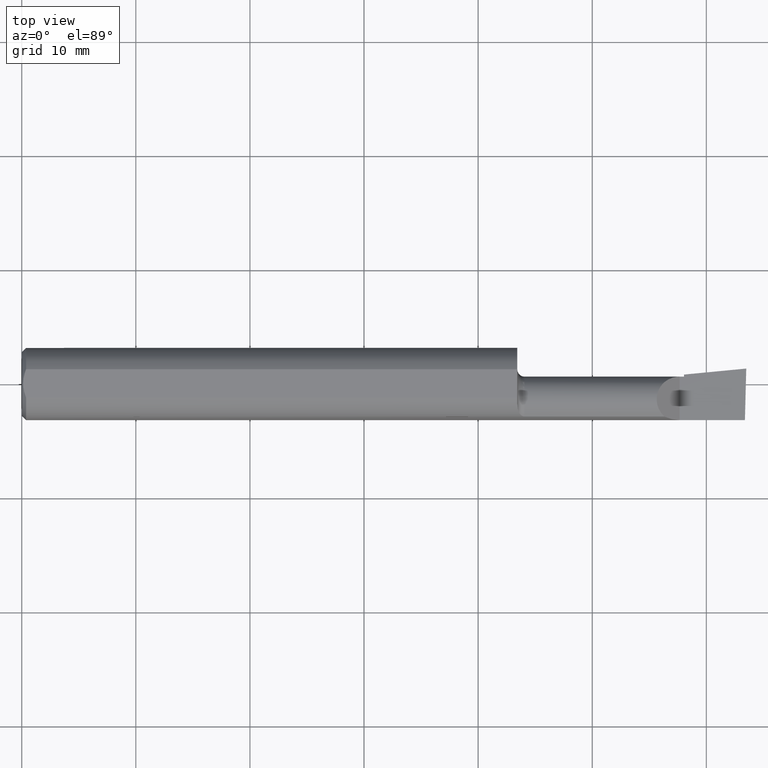
[diagram: clean part render]
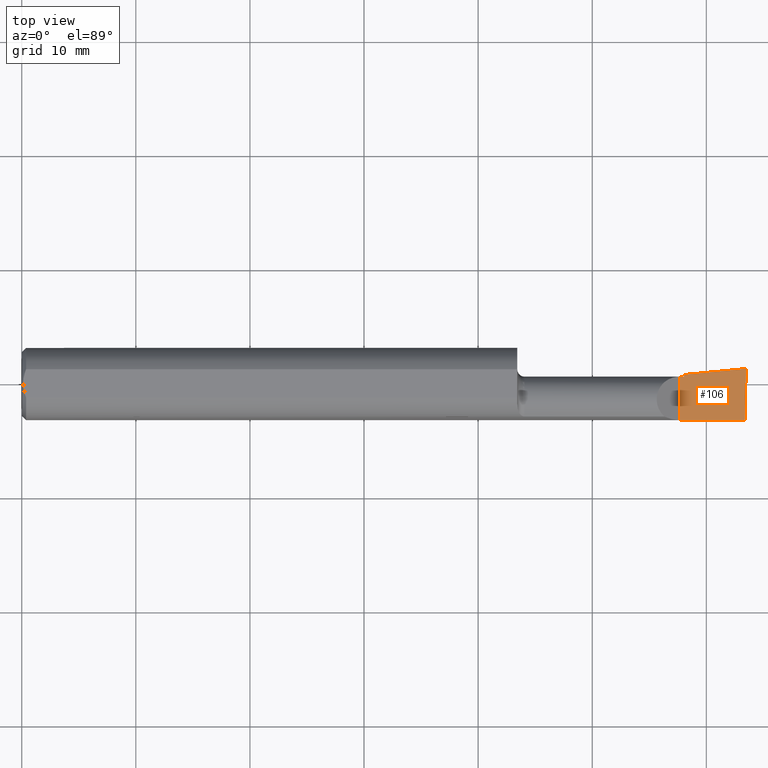
[diagram: same view with one face highlighted and labeled with its STEP entity id]
A machine part, top view. The second image highlights one B-rep face of the part: STEP entity #106.
In plain terms, the highlighted planar face has unit normal (-0, 0, -1).
Its self-contained STEP definition (entity closure, byte-faithful):
#4 = DIRECTION ( 'NONE',  ( 1.000000000000000000, -3.414809992080329023E-18, 0.0000000000000000000 ) ) ;
#12 = AXIS2_PLACEMENT_3D ( 'NONE', #86, #363, #92 ) ;
#15 = VECTOR ( 'NONE', #143, 39.37007874015748143 ) ;
#38 = VERTEX_POINT ( 'NONE', #214 ) ;
#39 = DIRECTION ( 'NONE',  ( -0.0000000000000000000, 1.000000000000000000, -0.0000000000000000000 ) ) ;
#52 = VECTOR ( 'NONE', #327, 39.37007874015748854 ) ;
#53 = EDGE_CURVE ( 'NONE', #534, #199, #119, .T. ) ;
#54 = ORIENTED_EDGE ( 'NONE', *, *, #560, .T. ) ;
#68 = EDGE_LOOP ( 'NONE', ( #463, #54, #591, #507, #413, #189 ) ) ;
#81 = CARTESIAN_POINT ( 'NONE',  ( 2.495338905960690301, -0.1248500000000000582, -6.632093541198142708E-17 ) ) ;
#86 = CARTESIAN_POINT ( 'NONE',  ( 2.500000000000000000, -0.2500000000000000555, -6.829619984160658046E-17 ) ) ;
#92 = DIRECTION ( 'NONE',  ( -1.000000000000000000, 0.0000000000000000000, 4.194046792260684025E-16 ) ) ;
#106 = ADVANCED_FACE ( 'NONE', ( #192 ), #324, .F. ) ;
#119 = LINE ( 'NONE', #398, #213 ) ;
#143 = DIRECTION ( 'NONE',  ( -1.000000000000000000, -0.0000000000000000000, -0.0000000000000000000 ) ) ;
#155 = LINE ( 'NONE', #233, #418 ) ;
#164 = LINE ( 'NONE', #311, #477 ) ;
#189 = ORIENTED_EDGE ( 'NONE', *, *, #360, .F. ) ;
#190 = LINE ( 'NONE', #455, #598 ) ;
#192 = FACE_OUTER_BOUND ( 'NONE', #68, .T. ) ;
#199 = VERTEX_POINT ( 'NONE', #342 ) ;
#213 = VECTOR ( 'NONE', #401, 39.37007874015748143 ) ;
#214 = CARTESIAN_POINT ( 'NONE',  ( 2.500000000000023093, 0.05315000000001686431, 4.789857934360050309E-14 ) ) ;
#221 = VERTEX_POINT ( 'NONE', #389 ) ;
#233 = CARTESIAN_POINT ( 'NONE',  ( 1.387204702863203742, -0.05399999999999999939, 3.984153547983287662E-16 ) ) ;
#234 = CARTESIAN_POINT ( 'NONE',  ( 2.285000000000000142, 0.02514999999999996058, 9.802154982235643272E-16 ) ) ;
#305 = VERTEX_POINT ( 'NONE', #81 ) ;
#311 = CARTESIAN_POINT ( 'NONE',  ( 2.270000000000000018, -0.2500000000000000555, 2.816687638038912303E-17 ) ) ;
#323 = VERTEX_POINT ( 'NONE', #582 ) ;
#324 = PLANE ( 'NONE',  #12 ) ;
#327 = DIRECTION ( 'NONE',  ( 0.02617694830793584199, 0.9996573249755555945, -1.081567693923432241E-17 ) ) ;
#342 = CARTESIAN_POINT ( 'NONE',  ( 2.285000000000000142, 0.03244785463753243476, 9.796236164780443746E-16 ) ) ;
#360 = EDGE_CURVE ( 'NONE', #323, #221, #164, .T. ) ;
#363 = DIRECTION ( 'NONE',  ( -4.194046792260684025E-16, 0.0000000000000000000, -1.000000000000000000 ) ) ;
#389 = CARTESIAN_POINT ( 'NONE',  ( 2.270000000000000018, 0.02514999999999993630, 2.816687638038912303E-17 ) ) ;
#391 = EDGE_CURVE ( 'NONE', #221, #534, #190, .T. ) ;
#398 = CARTESIAN_POINT ( 'NONE',  ( 2.285000000000000142, -0.2500000000000000555, 2.187580619199813988E-17 ) ) ;
#401 = DIRECTION ( 'NONE',  ( 3.414809992080329408E-18, 1.000000000000000000, -1.432187289346423802E-33 ) ) ;
#411 = CARTESIAN_POINT ( 'NONE',  ( 4.111069666048746882E-31, -0.1248499999999999888, 9.802154982235641300E-16 ) ) ;
#413 = ORIENTED_EDGE ( 'NONE', *, *, #391, .F. ) ;
#416 = DIRECTION ( 'NONE',  ( 0.9953961983671787417, 0.09584575252022459191, -4.174738232790345673E-16 ) ) ;
#418 = VECTOR ( 'NONE', #416, 39.37007874015748143 ) ;
#433 = LINE ( 'NONE', #411, #15 ) ;
#434 = EDGE_CURVE ( 'NONE', #305, #323, #433, .T. ) ;
#455 = CARTESIAN_POINT ( 'NONE',  ( 2.702822108735689715E-19, 0.02514999999999995364, 9.802154982235641300E-16 ) ) ;
#463 = ORIENTED_EDGE ( 'NONE', *, *, #434, .F. ) ;
#477 = VECTOR ( 'NONE', #39, 39.37007874015748143 ) ;
#505 = EDGE_CURVE ( 'NONE', #199, #38, #155, .T. ) ;
#507 = ORIENTED_EDGE ( 'NONE', *, *, #53, .F. ) ;
#514 = LINE ( 'NONE', #562, #52 ) ;
#534 = VERTEX_POINT ( 'NONE', #234 ) ;
#560 = EDGE_CURVE ( 'NONE', #305, #38, #514, .T. ) ;
#562 = CARTESIAN_POINT ( 'NONE',  ( 2.492067177432473635, -0.2497922717304240092, -6.496913693731578984E-17 ) ) ;
#582 = CARTESIAN_POINT ( 'NONE',  ( 2.270000000000000018, -0.1248500000000000165, 2.816687638038912303E-17 ) ) ;
#591 = ORIENTED_EDGE ( 'NONE', *, *, #505, .F. ) ;
#598 = VECTOR ( 'NONE', #4, 39.37007874015748143 ) ;